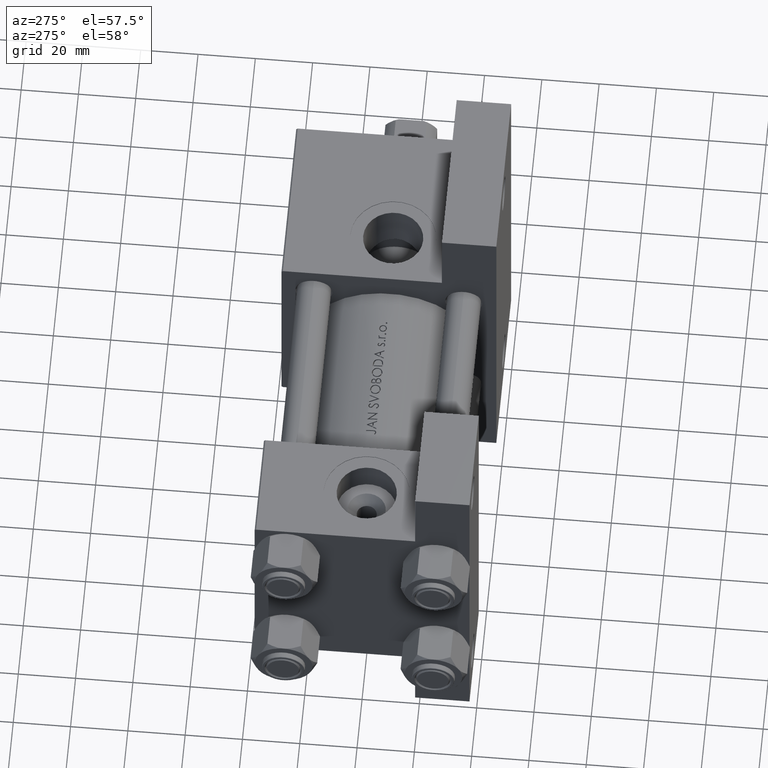
[diagram: clean part render]
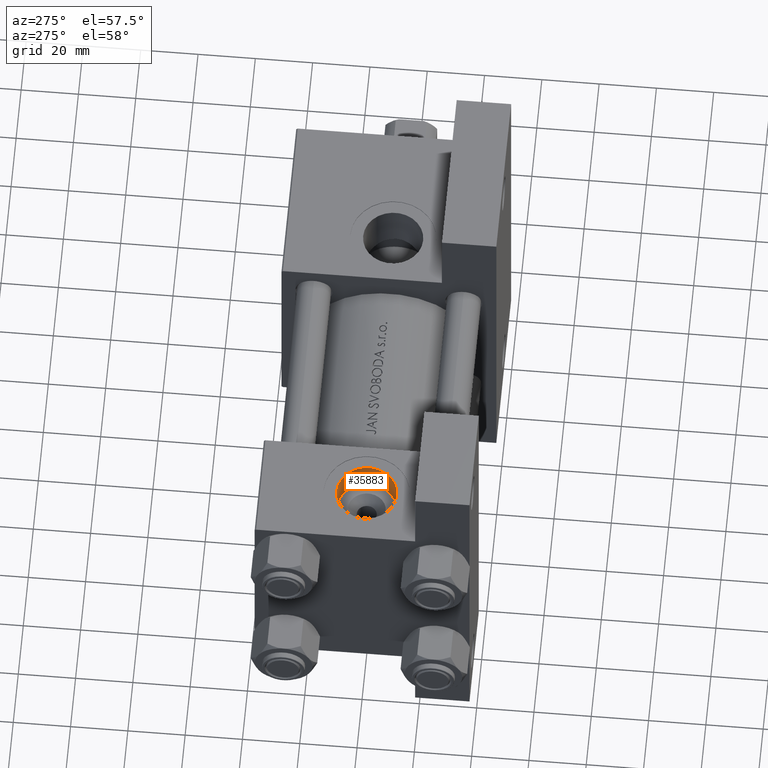
[diagram: same view with one face highlighted and labeled with its STEP entity id]
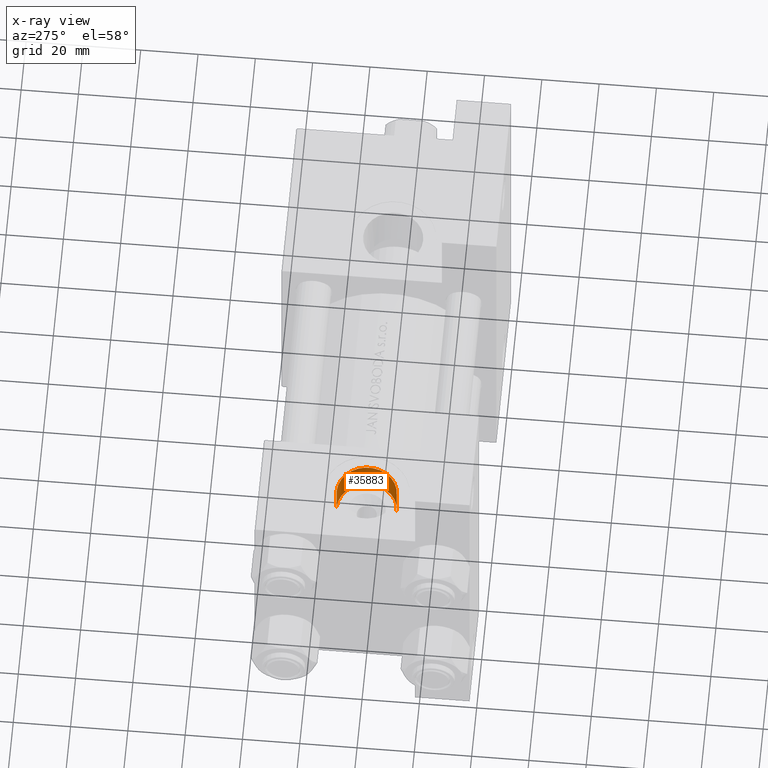
[diagram: x-ray of the same camera — body ghosted, the highlighted face saturated]
A machine part, auxiliary view. The second image highlights one B-rep face of the part: STEP entity #35883.
The next image is the same camera in x-ray: the body ghosted, the highlighted face saturated — about 0% of this face is hidden behind the body in this view.
In plain terms, the highlighted cylindrical surface (edge-blend (fillet) strip) has radius 10.48 mm, axis along (-0, -0, 1).
Its self-contained STEP definition (entity closure, byte-faithful):
#477 = CARTESIAN_POINT ( 'NONE',  ( 18.50000000000000000, -26.60000000000000497, -2.524022657546255111E-15 ) ) ;
#2464 = AXIS2_PLACEMENT_3D ( 'NONE', #36968, #28737, #22241 ) ;
#2926 = CARTESIAN_POINT ( 'NONE',  ( 18.50000000000000000, -26.60000000000000497, 10.47999999999999865 ) ) ;
#4859 = CIRCLE ( 'NONE', #2464, 10.48000000000000043 ) ;
#4920 = LINE ( 'NONE', #38302, #39163 ) ;
#5100 = CARTESIAN_POINT ( 'NONE',  ( 18.50000000000000000, -26.60000000000000497, -2.524022657546255111E-15 ) ) ;
#5843 = CARTESIAN_POINT ( 'NONE',  ( 18.50000000000000000, -26.60000000000000497, -10.48000000000000220 ) ) ;
#8505 = ORIENTED_EDGE ( 'NONE', *, *, #33122, .T. ) ;
#8943 = DIRECTION ( 'NONE',  ( -0.000000000000000000, -1.000000000000000000, -8.673617379884036705E-17 ) ) ;
#12085 = DIRECTION ( 'NONE',  ( 0.000000000000000000, -1.000000000000000000, -8.673617379884036705E-17 ) ) ;
#14766 = ORIENTED_EDGE ( 'NONE', *, *, #38153, .T. ) ;
#16825 = EDGE_LOOP ( 'NONE', ( #20179, #17229, #14766, #8505 ) ) ;
#17229 = ORIENTED_EDGE ( 'NONE', *, *, #26440, .F. ) ;
#18597 = VERTEX_POINT ( 'NONE', #22277 ) ;
#20038 = DIRECTION ( 'NONE',  ( 0.000000000000000000, 0.000000000000000000, -1.000000000000000000 ) ) ;
#20141 = FACE_OUTER_BOUND ( 'NONE', #16825, .T. ) ;
#20179 = ORIENTED_EDGE ( 'NONE', *, *, #45165, .F. ) ;
#21326 = CARTESIAN_POINT ( 'NONE',  ( 18.50000000000000000, -37.30000000000000426, -10.48000000000000398 ) ) ;
#22241 = DIRECTION ( 'NONE',  ( 0.000000000000000000, 0.000000000000000000, -1.000000000000000000 ) ) ;
#22277 = CARTESIAN_POINT ( 'NONE',  ( 18.50000000000000000, -26.60000000000000497, 10.47999999999999865 ) ) ;
#22384 = AXIS2_PLACEMENT_3D ( 'NONE', #477, #8943, #45796 ) ;
#22576 = DIRECTION ( 'NONE',  ( -0.000000000000000000, -1.000000000000000000, -8.673617379884036705E-17 ) ) ;
#23840 = DIRECTION ( 'NONE',  ( -0.000000000000000000, -1.000000000000000000, -8.673617379884036705E-17 ) ) ;
#25142 = VERTEX_POINT ( 'NONE', #27088 ) ;
#26067 = LINE ( 'NONE', #2926, #32250 ) ;
#26440 = EDGE_CURVE ( 'NONE', #38457, #18597, #42114, .T. ) ;
#27088 = CARTESIAN_POINT ( 'NONE',  ( 18.50000000000000000, -37.30000000000000426, 10.47999999999999687 ) ) ;
#27607 = CYLINDRICAL_SURFACE ( 'NONE', #22384, 10.48000000000000043 ) ;
#28737 = DIRECTION ( 'NONE',  ( 0.000000000000000000, -1.000000000000000000, -8.673617379884036705E-17 ) ) ;
#32250 = VECTOR ( 'NONE', #22576, 1000.000000000000000 ) ;
#32778 = VERTEX_POINT ( 'NONE', #21326 ) ;
#33122 = EDGE_CURVE ( 'NONE', #32778, #25142, #4859, .T. ) ;
#35883 = ADVANCED_FACE ( 'NONE', ( #20141 ), #27607, .F. ) ;
#36968 = CARTESIAN_POINT ( 'NONE',  ( 18.50000000000000000, -37.30000000000000426, -3.452099717193846907E-15 ) ) ;
#38153 = EDGE_CURVE ( 'NONE', #38457, #32778, #4920, .T. ) ;
#38302 = CARTESIAN_POINT ( 'NONE',  ( 18.50000000000000000, -26.60000000000000497, -10.48000000000000220 ) ) ;
#38457 = VERTEX_POINT ( 'NONE', #5843 ) ;
#39163 = VECTOR ( 'NONE', #23840, 1000.000000000000000 ) ;
#42114 = CIRCLE ( 'NONE', #42902, 10.48000000000000043 ) ;
#42902 = AXIS2_PLACEMENT_3D ( 'NONE', #5100, #12085, #20038 ) ;
#45165 = EDGE_CURVE ( 'NONE', #18597, #25142, #26067, .T. ) ;
#45796 = DIRECTION ( 'NONE',  ( 0.000000000000000000, 0.000000000000000000, -1.000000000000000000 ) ) ;